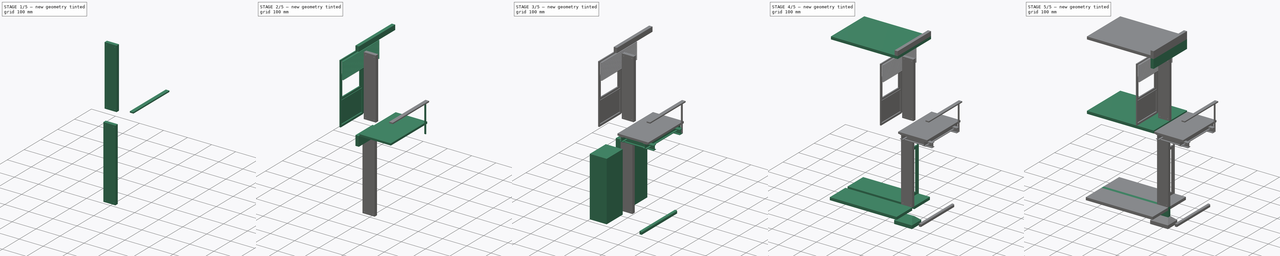
[diagram: build sequence overview — one tinted view per stage of 5, left to right]
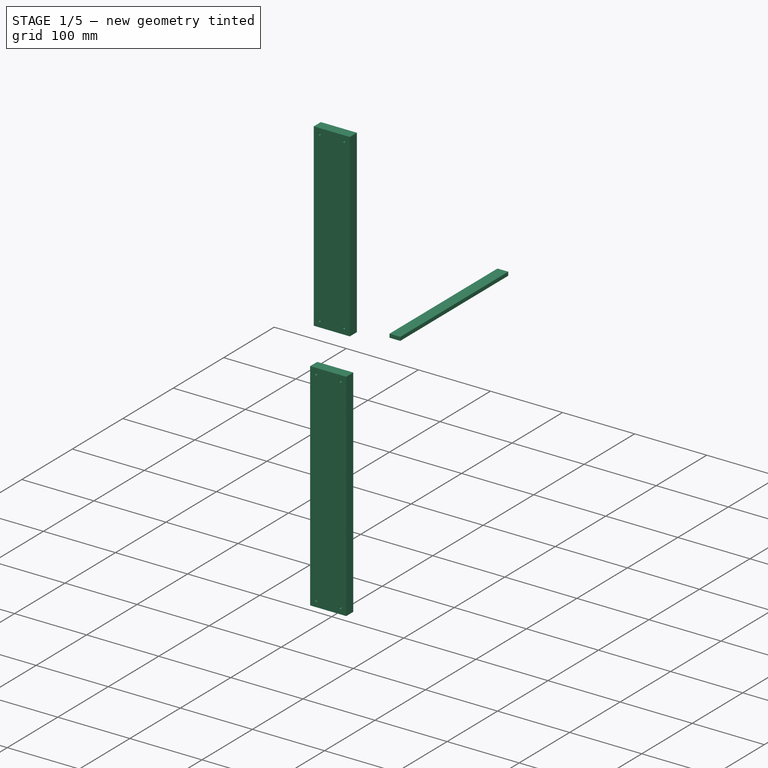
[diagram: stage 1 of 5 — iso view after this stage's code; geometry added in this stage tinted green]
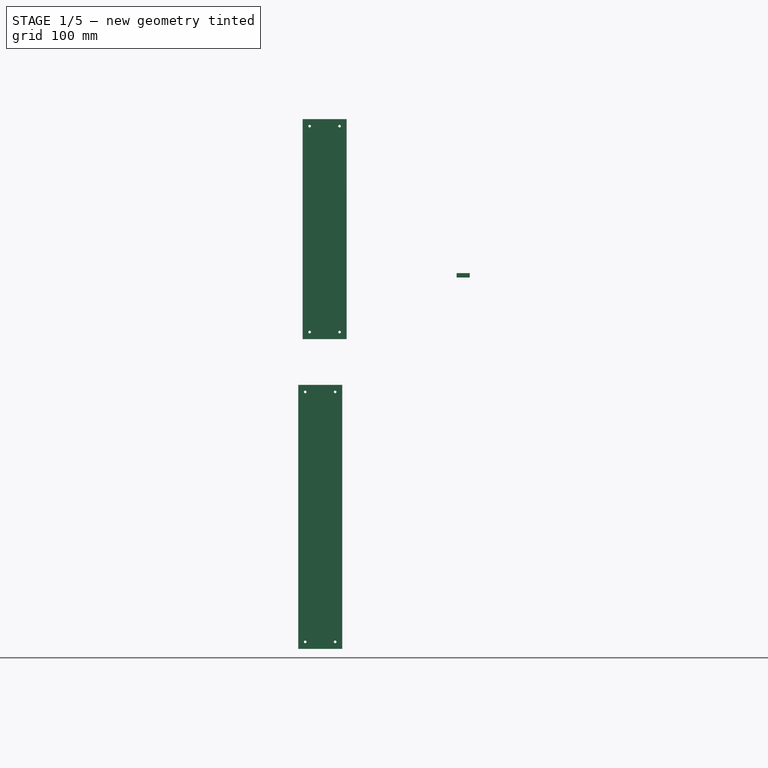
[diagram: stage 1 of 5 — front view after this stage's code; geometry added in this stage tinted green]
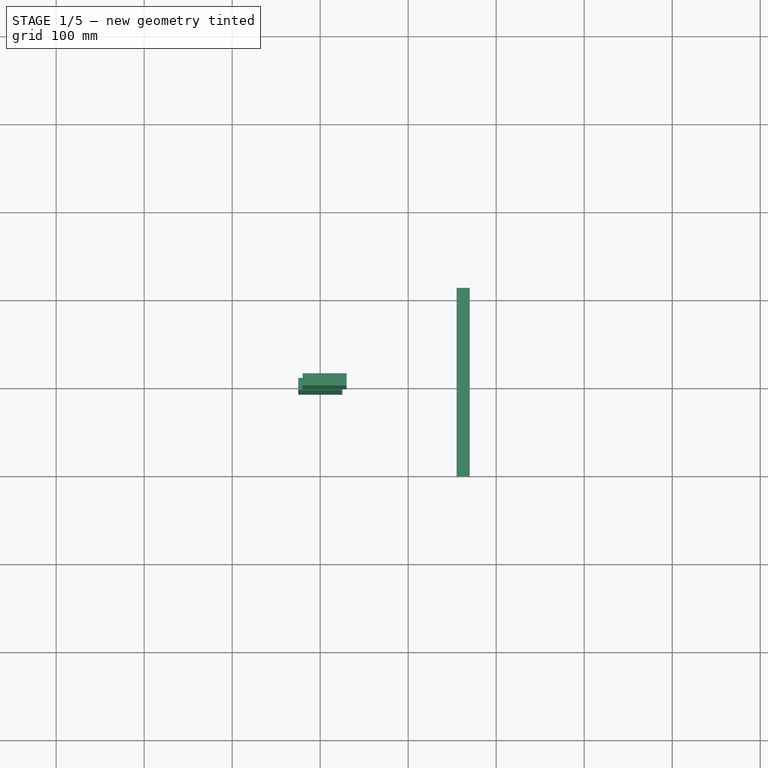
[diagram: stage 1 of 5 — top view after this stage's code; geometry added in this stage tinted green]
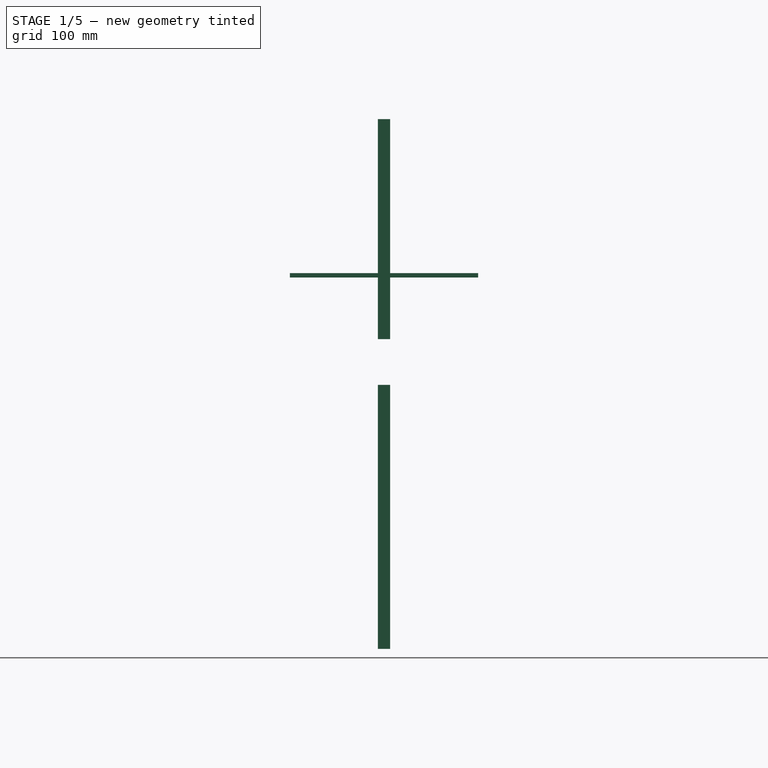
[diagram: stage 1 of 5 — right view after this stage's code; geometry added in this stage tinted green]
FCSTD DOCUMENT  (FreeCAD 0.19R17171 (Git))
Label: ArchDetail
License: CC-BY 3.0
LicenseURL: http://creativecommons.org/licenses/by/3.0/
objects: Part::FeaturePython×29, App::FeaturePython×18, Part::Part2DObjectPython×12, Sketcher::SketchObject×6, Part::Extrusion×6, App::DocumentObjectGroup×6, Drawing::FeatureViewPython×5, Part::Feature×3, Drawing::FeatureViewAnnotation×3, PartDesign::Pocket×2, Drawing::FeaturePage×1
note: 63 computed .brp shape members not serialized (recipe doc carries the construction recipe); baked Part::Feature solids carry a one-line shape summary decoded from their .brp

FEATURE [Part::FeaturePython] Structure  # Arch/BIM 0 (typed FeaturePython)
  FaceMaker = 0
  Height = 300
  HorizontalArea = 0
  IfcData = attributes={"PredefinedType": {"name": "PredefinedType", "type": "IfcBuildingElementProxyTypeEnum", "is_enum": true, "enum_values":... (+212 chars omitted)
  IfcType = 0
  Length = 50
  MoveBase = false
  MoveWithHost = false
  Nodes = (2) [(3.88578e-16,-1.42109e-16,0),(3.88578e-16,-1.42109e-16,300)]
  NodesOffset = 0
  Normal = (0,0,0)
  PerimeterLength = 0
  PredefinedType = 0
  VerticalArea = 0
  Width = 14
FEATURE [Sketcher::SketchObject] Sketch
  ExternalGeometry = -> [Structure]
  MapMode = 5
  Placement = pos=(0,-7,0) rot=(1,0,0;1.5708rad)
  Support = -> [Structure]
  sketch-geometry (4):
    g0: Circle CenterX=-17 CenterY=292 CenterZ=0 NormalX=0 NormalY=0 NormalZ=1 AngleXU=0 Radius=1.5
    g1: Circle CenterX=17 CenterY=292 CenterZ=0 NormalX=0 NormalY=0 NormalZ=1 AngleXU=0 Radius=1.5
    g2: Circle CenterX=-17 CenterY=8 CenterZ=0 NormalX=0 NormalY=0 NormalZ=1 AngleXU=0 Radius=1.5
    g3: Circle CenterX=17 CenterY=8 CenterZ=0 NormalX=0 NormalY=0 NormalZ=1 AngleXU=0 Radius=1.5
  constraints (12):
    c: Radius(g0) = 1.5
    c: DistanceY(g0,g-3) = 8
    c: DistanceX(g0,g-3) = -8
    c: Radius(g1) = 1.5
    c: DistanceY(g1,g-3) = 8
    c: DistanceX(g1,g-3) = 8
    c: Radius(g2) = 1.5
    c: DistanceX(g2,g-4) = -8
    c: DistanceY(g2,g-4) = -8
    c: DistanceY(g3,g-4) = -8
    c: Radius(g3) = 1.5
    c: DistanceX(g3,g-4) = 8
FEATURE [PartDesign::Pocket] Pocket
  Length = 14
  Length2 = 100
  Profile = -> Sketch
  Type = 0
FEATURE [Part::FeaturePython] Structure009  # Arch/BIM 0 (typed FeaturePython)
  FaceMaker = 0
  Height = 250
  HorizontalArea = 0
  IfcData = attributes={"PredefinedType": {"name": "PredefinedType", "type": "IfcBuildingElementProxyTypeEnum", "is_enum": true, "enum_values":... (+212 chars omitted)
  IfcType = 0
  Length = 50
  MoveBase = false
  MoveWithHost = false
  Nodes = (2) [(3.88578e-16,-1.42109e-16,0),(3.88578e-16,-1.42109e-16,250)]
  NodesOffset = 0
  Normal = (0,0,0)
  PerimeterLength = 0
  Placement = pos=(5,0,352) rot=(0,0,1;0rad)
  PredefinedType = 0
  VerticalArea = 0
  Width = 14
FEATURE [Sketcher::SketchObject] Sketch001
  ExternalGeometry = -> [Structure009]
  MapMode = 5
  Placement = pos=(5,-7,352) rot=(1,0,0;1.5708rad)
  Support = -> [Structure009]
  sketch-geometry (4):
    g0: Circle CenterX=-17 CenterY=242 CenterZ=0 NormalX=0 NormalY=0 NormalZ=1 AngleXU=0 Radius=1.5
    g1: Circle CenterX=17 CenterY=242 CenterZ=0 NormalX=0 NormalY=0 NormalZ=1 AngleXU=0 Radius=1.5
    g2: Circle CenterX=-17 CenterY=8 CenterZ=0 NormalX=0 NormalY=0 NormalZ=1 AngleXU=0 Radius=1.5
    g3: Circle CenterX=17 CenterY=8 CenterZ=0 NormalX=0 NormalY=0 NormalZ=1 AngleXU=0 Radius=1.5
  constraints (12):
    c: Radius(g0) = 1.5
    c: DistanceY(g0,g-3) = 8
    c: DistanceX(g0,g-3) = -8
    c: DistanceY(g1,g-3) = 8
    c: DistanceX(g1,g-3) = 8
    c: Radius(g1) = 1.5
    c: Radius(g2) = 1.5
    c: DistanceY(g-4,g2) = 8
    c: DistanceX(g2,g-4) = -8
    c: DistanceY(g-4,g3) = 8
    c: DistanceX(g3,g-4) = 8
    c: Radius(g3) = 1.5
FEATURE [PartDesign::Pocket] Pocket001
  Length = 14
  Length2 = 100
  Placement = pos=(5,0,352) rot=(0,0,1;0rad)
  Profile = -> Sketch001
  Type = 0
FEATURE [Part::Feature] Extrusion004  label="Balcony vertical support 02"
  Placement = pos=(0,-177,0) rot=(0,0,1;0rad)
  shape: bbox 6 x 3 x 112 mm, 6 faces (baked)
FEATURE [Part::Feature] Array001  label="Balcony louvres"
  Placement = pos=(197,3.00086e-05,-180) rot=(0,0,1;0rad)
  shape: bbox 8.05 x 214 x 70.37 mm, 84 faces, 14 solids (baked)
FEATURE [Part::Part2DObjectPython] Rectangle009  # Draft 2D object (typed FeaturePython)
  FilletRadius = 0
  Height = 5
  Length = -15
  Placement = pos=(170,-107,422) rot=(1,0,0;1.5708rad)
FEATURE [Part::Extrusion] Extrusion005  label="Balcony handrail"
  Base = -> Rectangle009
  Dir = (0,214,0)
  DirMode = 0
  FaceMakerClass = Part::FaceMakerExtrusion
  LengthFwd = 0
  LengthRev = 0
  Solid = false
  Symmetric = false
FEATURE [Part::Part2DObjectPython] Wire  # Draft 2D object (typed FeaturePython)
  Closed = false
  End = (31.3439,-7.90686e-05,671.711)
  FilletRadius = 0
  Placement = pos=(0,-107,0) rot=(0,0,1;0rad)
  Points = (6) [(-7.58162e-36,233258,1.85901e+20),(-8.50939e-36,12244800,2.28099e+20),(-8.50939e-36,7181030000,2.20694e+20),(0,0,0),(0,0,0),(0,0,0)]
  Start = (-269.759,-7.82754e-05,656.622)
FEATURE [Part::Extrusion] Extrude  label="Roof cover"
  Base = -> Wire
  Dir = (0,214,0)
  DirMode = 0
  FaceMakerClass = Part::FaceMakerExtrusion
  LengthFwd = 0
  LengthRev = 0
  Solid = false
  Symmetric = false
FEATURE [Part::FeaturePython] Structure023  label="Upper floor column"  # Arch/BIM 0 (typed FeaturePython)
  Base = -> Pocket001
  FaceMaker = 0
  Height = 0
  HorizontalArea = 0
  IfcData = attributes={"PredefinedType": {"name": "PredefinedType", "type": "IfcBuildingElementProxyTypeEnum", "is_enum": true, "enum_values":... (+212 chars omitted)
  IfcType = 0
  Length = 0
  MoveBase = false
  MoveWithHost = false
  NodesOffset = 0
  Normal = (0,0,0)
  PerimeterLength = 0
  PredefinedType = 0
  VerticalArea = 0
  Width = 0
FEATURE [Part::FeaturePython] Structure024  label="Ground floor column"  # Arch/BIM 0 (typed FeaturePython)
  Base = -> Pocket
  FaceMaker = 0
  Height = 0
  HorizontalArea = 0
  IfcData = attributes={"PredefinedType": {"name": "PredefinedType", "type": "IfcBuildingElementProxyTypeEnum", "is_enum": true, "enum_values":... (+212 chars omitted)
  IfcType = 0
  Length = 0
  MoveBase = false
  MoveWithHost = false
  NodesOffset = 0
  Normal = (0,0,0)
  PerimeterLength = 0
  PredefinedType = 0
  VerticalArea = 0
  Width = 0
FEATURE [App::DocumentObjectGroup] Group  label="Model"
  Group = -> [Extrude,Extrusion005,Array001,Extrusion004,Extrusion003,Array,Structure022,Rectangle006,Window001,Structure021,Structure020,Structure019,Structure018,Structure017,Rectangle,Structure016,Structure015,Clone,Window,Wall,Structure014,Structure013,Structure012,Structure011,Structure010,Structure008,Structure007,Structure006,Structure005,Structure001,Structure002,Structure003,Structure023,Structure024]
FEATURE [App::DocumentObjectGroup] Group001  label="Construction geometry"
  Group = -> [Extrusion002,Rectangle005,Rectangle001,Structure009,Structure]
FEATURE [App::FeaturePython] Section  label="Section A"  # WARN: FeaturePython — macro-defined, semantics opaque (R4)
  AlwaysOn = false
  Clip = false
  Objects = -> [Group]
  OnlySolids = true
  Placement = pos=(299.458,2.42689e-05,299.666) rot=(0,1,0;1.5708rad)
  UseMaterialColorForFill = false
FEATURE [Drawing::FeatureViewPython] View  label="View of Section A"  # drawing view (typed FeaturePython)
  AlwaysOn = false
  FontSize = 12
  LineWidth = 0.18
  RenderingMode = 0
  Rotation = 90
  Scale = 0.25
  ShowCut = false
  ShowFill = false
  Source = -> Section
  ViewResult = <blob: 50018 chars omitted>
  Visible = true
  X = 200
  Y = 190
FEATURE [App::FeaturePython] Section001  label="Section B"  # WARN: FeaturePython — macro-defined, semantics opaque (R4)
  AlwaysOn = false
  Clip = false
  Objects = -> [Group]
  OnlySolids = true
  Placement = pos=(-42.4009,-53.7271,299.769) rot=(-0.57735,-0.57735,0.57735;4.18879rad)
  UseMaterialColorForFill = false
FEATURE [Drawing::FeatureViewPython] View001  label="View of Section B"  # drawing view (typed FeaturePython)
  AlwaysOn = false
  FontSize = 12
  LineWidth = 0.18
  RenderingMode = 1
  Rotation = 180
  Scale = 0.25
  ShowCut = false
  ShowFill = true
  Source = -> Section001
  ViewResult = <blob: 47117 chars omitted>
  Visible = true
  X = 340
  Y = 190
FEATURE [Drawing::FeatureViewPython] View002  label="View of Section A (2)"  # drawing view (typed FeaturePython)
  AlwaysOn = false
  FontSize = 12
  LineWidth = 0.18
  RenderingMode = 1
  Rotation = 0
  Scale = 0.25
  ShowCut = false
  ShowFill = false
  Source = -> Section
  ViewResult = <blob: 28908 chars omitted>
  Visible = true
  X = 100
  Y = 190
FEATURE [Drawing::FeatureViewAnnotation] Annotation  label="Title 01"
  Font = Sans
  Rotation = 0
  Scale = 4
  Text = View of section A (wireframe)
  ViewResult = <g transform="translate(74,221) rotate(0)">\n<text id="Annotation"\n font-family="Sans"\n font-size="4"\n fill="#000000">\n<tspan x="0" dy="1em">View of section A (wireframe)</tspan>\n</text>\n</g>
  Visible = true
  X = 74
  Y = 221
FEATURE [Drawing::FeatureViewAnnotation] Annotation001  label="Title 02"
  Font = Sans
  Rotation = 0
  Scale = 4
  Text = View of section A (Solid)
  ViewResult = <g transform="translate(171,221) rotate(0)">\n<text id="Annotation001"\n font-family="Sans"\n font-size="4"\n fill="#000000">\n<tspan x="0" dy="1em">View of section A (Solid)</tspan>\n</text>\n</g>
  Visible = true
  X = 171
  Y = 221
FEATURE [Drawing::FeatureViewAnnotation] Annotation002  label="Title 03"
  Font = Sans
  Rotation = 0
  Scale = 4
  Text = View of section B (Wireframe)
  ViewResult = <g transform="translate(283,221) rotate(0)">\n<text id="Annotation002"\n font-family="Sans"\n font-size="4"\n fill="#000000">\n<tspan x="0" dy="1em">View of section B (Wireframe)</tspan>\n</text>\n</g>
  Visible = true
  X = 283
  Y = 221
FEATURE [App::FeaturePython] Section002  label="Section C"  # WARN: FeaturePython — macro-defined, semantics opaque (R4)
  Clip = false
  Objects = -> [Group]
  OnlySolids = true
  Placement = pos=(-43.5862,2.98023e-05,500) rot=(0,0,1;0rad)
  UseMaterialColorForFill = false
FEATURE [App::FeaturePython] Dimension  # Draft dimension (typed FeaturePython)
  Diameter = false
  Dimline = (-25,-164.867,235.542)
  Direction = (0,0,0)
  Distance = 250
  End = (-25,-107,250)
  Normal = (1,0,0)
  Start = (-25,-107,0)
FEATURE [App::FeaturePython] Dimension001  # Draft dimension (typed FeaturePython)
  Diameter = false
  Dimline = (-25,-164.867,250)
  Direction = (0,0,0)
  Distance = 50
  End = (-25,-107,300)
  Normal = (1,0,0)
  Start = (-25,-107,250)
FEATURE [App::FeaturePython] Dimension002  # Draft dimension (typed FeaturePython)
  Diameter = false
  Dimline = (-25,-164.867,300)
  Direction = (0,0,0)
  Distance = 52
  End = (-25,-107,352)
  Normal = (1,0,0)
  Start = (-25,-107,300)
FEATURE [App::FeaturePython] Dimension003  # Draft dimension (typed FeaturePython)
  Diameter = false
  Dimline = (-25,-164.867,352)
  Direction = (0,0,0)
  Distance = 75
  End = (-25,-107,427)
  Normal = (1,0,0)
  Start = (-25,-107,352)
FEATURE [App::FeaturePython] Dimension004  # Draft dimension (typed FeaturePython)
  Diameter = false
  Dimline = (-25,-164.867,427)
  Direction = (0,0,0)
  Distance = 175
  End = (-25,-107,602)
  Normal = (1,0,0)
  Start = (-25,-107,427)
FEATURE [App::FeaturePython] Dimension005  # Draft dimension (typed FeaturePython)
  Diameter = false
  Dimline = (-25,-164.867,602)
  Direction = (0,0,0)
  Distance = 40
  End = (-25,-107,642)
  Normal = (1,0,0)
  Start = (-25,-107,602)
FEATURE [App::FeaturePython] Dimension006  # Draft dimension (typed FeaturePython)
  Diameter = false
  Dimline = (-25,-164.867,642)
  Direction = (0,0,0)
  Distance = 29.7106
  End = (-25,-107,671.711)
  Normal = (1,0,0)
  Start = (-25,-107,642)
FEATURE [App::FeaturePython] Dimension007  # Draft dimension (typed FeaturePython)
  Diameter = false
  Dimline = (-25,-200,-112.549)
  Direction = (0,0,0)
  Distance = 671.711
  End = (-25,-164.867,671.711)
  Normal = (1,0,0)
  Start = (-25,-164.867,0)
FEATURE [App::DocumentObjectGroup] Group002  label="Dimensions front view"
  Group = -> [Dimension,Dimension001,Dimension002,Dimension003,Dimension004,Dimension005,Dimension006,Dimension007]
FEATURE [Drawing::FeatureViewPython] ViewGroup002  label="View of front dimensions"  # drawing view (typed FeaturePython)
  AlwaysOn = false
  Direction = (1,0,0)
  FillStyle = 0
  FontSize = 7
  LineSpacing = 0
  LineStyle = 0
  LineWidth = 0.15
  Rotation = -90
  Scale = 0.25
  Source = -> Group002
  ViewResult = <blob: 7216 chars omitted>
  Visible = true
  X = 104
  Y = 190
FEATURE [App::DocumentObjectGroup] Group003  label="Section Planes"
  Group = -> [Section,Section001,Section002]
FEATURE [App::FeaturePython] Dimension008  # Draft dimension (typed FeaturePython)
  Diameter = false
  Dimline = (-100,-7,150)
  Direction = (0,0,0)
  Distance = 300
  End = (25,-7,300)
  Normal = (0,-1,0)
  Start = (25,-7,0)
FEATURE [App::FeaturePython] Dimension009  # Draft dimension (typed FeaturePython)
  Diameter = false
  Dimline = (-100,-7,300)
  Direction = (0,0,0)
  Distance = 52
  End = (16,-7,352)
  Normal = (0,-1,0)
  Start = (16,-7,300)
FEATURE [App::FeaturePython] Dimension010  # Draft dimension (typed FeaturePython)
  Diameter = false
  Dimline = (-100,-7,300)
  Direction = (0,0,0)
  Distance = 250
  End = (30,-7,602)
  Normal = (0,-1,0)
  Start = (30,-7,352)
FEATURE [App::FeaturePython] Dimension011  # Draft dimension (typed FeaturePython)
  Diameter = false
  Dimline = (-100,-7,602)
  Direction = (0,0,0)
  Distance = 52
  End = (16,-7,654)
  Normal = (0,-1,0)
  Start = (16,-7,602)
FEATURE [App::FeaturePython] Dimension012  # Draft dimension (typed FeaturePython)
  Diameter = false
  Dimline = (100,-7,250)
  Direction = (0,0,0)
  Distance = 309.946
  End = (75,-7,309.946)
  Normal = (0,-1,0)
  Start = (75,-7,0)
FEATURE [App::FeaturePython] Dimension013  # Draft dimension (typed FeaturePython)
  Diameter = false
  Dimline = (100,-7,309.946)
  Direction = (0,0,0)
  Distance = 38.0544
  End = (164,-7,348)
  Normal = (0,-1,0)
  Start = (164,-7,309.946)
FEATURE [App::FeaturePython] Dimension014  # Draft dimension (typed FeaturePython)
  Diameter = false
  Dimline = (100,-7,348)
  Direction = (0,0,0)
  Distance = 79
  End = (162,-7,427)
  Normal = (0,-1,0)
  Start = (162,-7,348)
FEATURE [App::DocumentObjectGroup] Group004  label="Dimensions side view"
  Group = -> [Dimension008,Dimension009,Dimension010,Dimension011,Dimension012,Dimension013,Dimension014]
FEATURE [Drawing::FeatureViewPython] ViewGroup004  label="View of side dimensions"  # drawing view (typed FeaturePython)
  AlwaysOn = false
  Direction = (0,-1,0)
  FillStyle = 0
  FontSize = 7
  LineSpacing = 0
  LineStyle = 0
  LineWidth = 0.15
  Rotation = 90
  Scale = 0.25
  Source = -> Group004
  ViewResult = <blob: 5634 chars omitted>
  Visible = true
  X = 335
  Y = 190
FEATURE [Drawing::FeaturePage] Page  label="Page A3"
  EditableTexts = Yorik van Havre | 01 NOV 2016 | 01 NOV 2016 | 1:40 | 0001 | 01 / 01 | ARCHITECTURAL DETAIL | TO SHOWCASE ARCH SECTION PLANES
  Group = -> [View,View001,View002,Annotation,Annotation001,Annotation002,ViewGroup002,ViewGroup004]
  Template = E:/New Download/FreeCAD/_FreeCAD_Conda/data/Mod/Drawing/Templates/A3_Landscape.svg
FEATURE [App::DocumentObjectGroup] Group005  label="Dimensions"
  Group = -> [Group004,Group002]
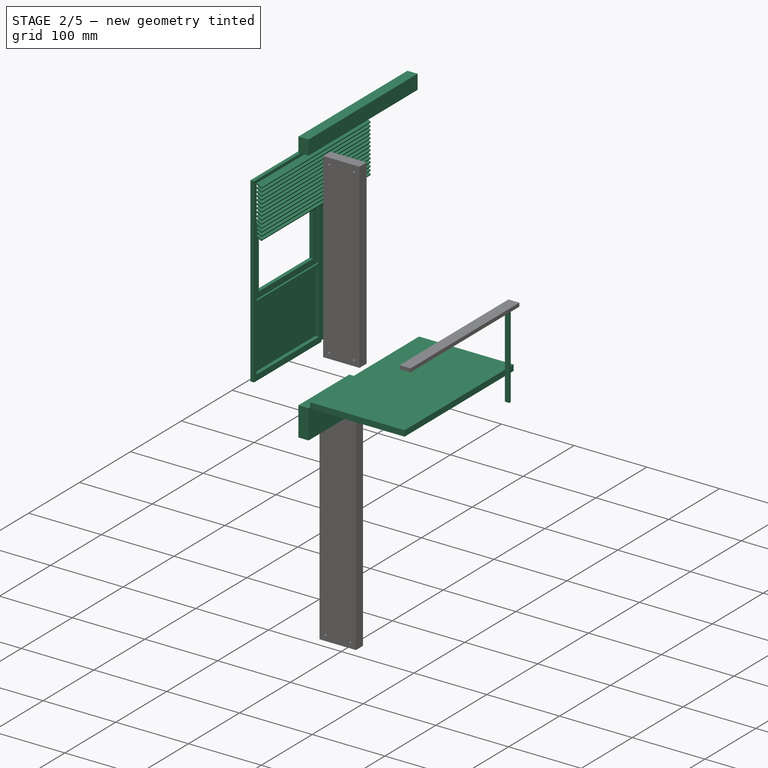
[diagram: stage 2 of 5 — iso view after this stage's code; geometry added in this stage tinted green]
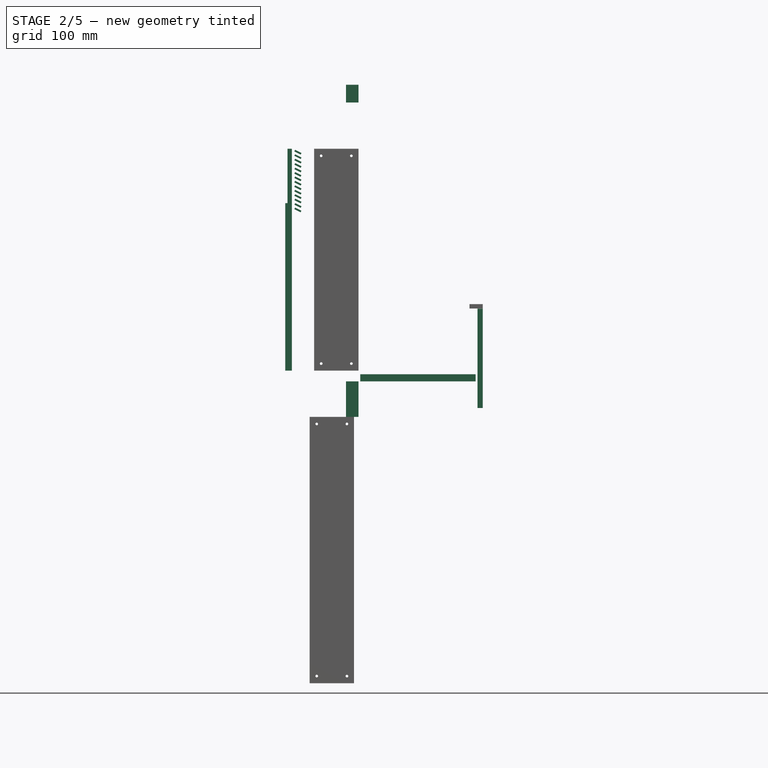
[diagram: stage 2 of 5 — front view after this stage's code; geometry added in this stage tinted green]
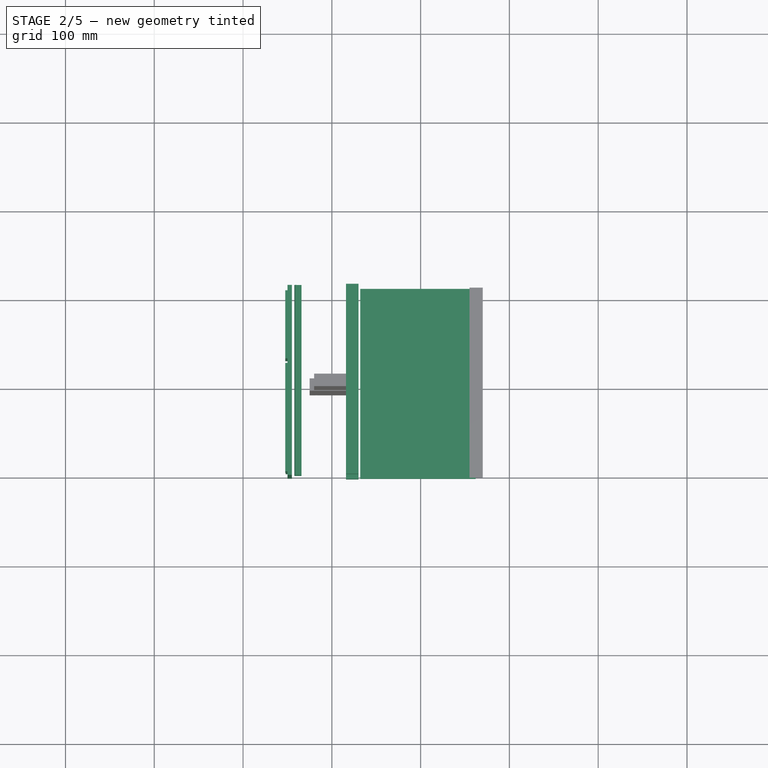
[diagram: stage 2 of 5 — top view after this stage's code; geometry added in this stage tinted green]
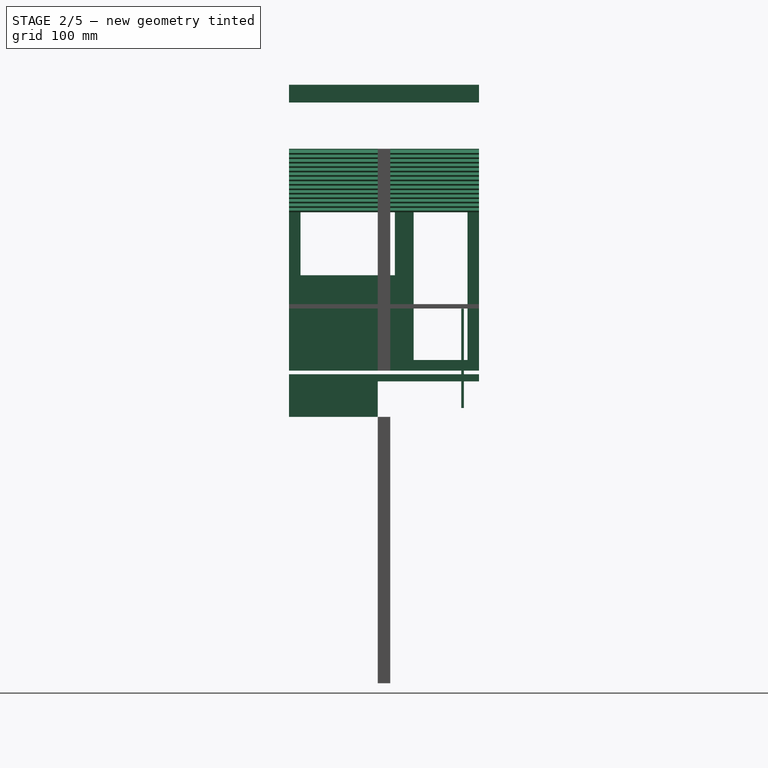
[diagram: stage 2 of 5 — right view after this stage's code; geometry added in this stage tinted green]
FEATURE [Part::FeaturePython] Structure002  label="Upper floor front beam 02"  # Arch/BIM 0 (typed FeaturePython)
  FaceMaker = 0
  Height = 40
  HorizontalArea = 0
  IfcData = attributes={"PredefinedType": {"name": "PredefinedType", "type": "IfcBuildingElementProxyTypeEnum", "is_enum": true, "enum_values":... (+212 chars omitted)
  IfcType = 0
  Length = 100
  MoveBase = false
  MoveWithHost = false
  Nodes = (2) [(0,1.77636e-16,9.4369e-16),(0,1.77636e-16,100)]
  NodesOffset = 0
  Normal = (0,0,0)
  PerimeterLength = 0
  Placement = pos=(23,-7,320) rot=(0,0,-1;1.5708rad)
  PredefinedType = 0
  VerticalArea = 0
  Width = 14
FEATURE [Part::Part2DObjectPython] Rectangle004  # Draft 2D object (typed FeaturePython)
  FilletRadius = 0
  Height = -214
  Length = 130
  Placement = pos=(32,107,340) rot=(0,0,1;0rad)
FEATURE [Part::FeaturePython] Structure021  label="Balcony slab"  # Arch/BIM 0 (typed FeaturePython)
  Base = -> Rectangle004
  FaceMaker = 0
  Height = 0
  HorizontalArea = 0
  IfcData = attributes={"PredefinedType": {"name": "PredefinedType", "type": "IfcBuildingElementProxyTypeEnum", "is_enum": true, "enum_values":... (+212 chars omitted)
  IfcType = 0
  Length = 0
  MoveBase = false
  MoveWithHost = false
  Nodes = (4) [(32,107,340),(162,107,340),(162,-107,340),(32,-107,340)]
  NodesOffset = 0
  Normal = (0,0,8)
  PerimeterLength = 0
  PredefinedType = 0
  VerticalArea = 0
  Width = 0
FEATURE [Part::Part2DObjectPython] Rectangle005  # Draft 2D object (typed FeaturePython)
  FilletRadius = 0
  Height = 250
  Length = 214
  Placement = pos=(-50,-107,352) rot=(0.57735,0.57735,0.57735;2.0944rad)
FEATURE [Sketcher::SketchObject] Sketch005
  ExternalGeometry = -> [Rectangle005]
  MapMode = 5
  Placement = pos=(-50,-107,352) rot=(0.57735,0.57735,-0.57735;4.18879rad)
  Support = -> [Rectangle005]
  sketch-geometry (28):
    g0: LineSegment StartX=0 StartY=-250 StartZ=0 EndX=214 EndY=-250 EndZ=0
    g1: LineSegment StartX=214 StartY=-250 StartZ=0 EndX=214 EndY=0 EndZ=0
    g2: LineSegment StartX=214 StartY=0 StartZ=0 EndX=0 EndY=0 EndZ=0
    g3: LineSegment StartX=0 StartY=0 StartZ=0 EndX=0 EndY=-250 EndZ=0
    g4: LineSegment StartX=209 StartY=-245 StartZ=0 EndX=5 EndY=-245 EndZ=0
    g5: LineSegment StartX=5 StartY=-245 StartZ=0 EndX=5 EndY=-193.698 EndZ=0
    g6: LineSegment StartX=5 StartY=-193.698 StartZ=0 EndX=209 EndY=-193.698 EndZ=0
    g7: LineSegment StartX=209 StartY=-193.698 StartZ=0 EndX=209 EndY=-245 EndZ=0
    g8: LineSegment StartX=209 StartY=-188.698 StartZ=0 EndX=132.303 EndY=-188.698 EndZ=0
    g9: LineSegment StartX=132.303 StartY=-188.698 StartZ=0 EndX=132.303 EndY=0 EndZ=0
    g10: LineSegment StartX=132.303 StartY=0 StartZ=0 EndX=209 EndY=0 EndZ=0
    g11: LineSegment StartX=209 StartY=0 StartZ=0 EndX=209 EndY=-188.698 EndZ=0
    g12: LineSegment StartX=127.303 StartY=-188.698 StartZ=0 EndX=5 EndY=-188.698 EndZ=0
    g13: LineSegment StartX=5 StartY=-188.698 StartZ=0 EndX=5 EndY=-99.4786 EndZ=0
    g14: LineSegment StartX=5 StartY=-99.4786 StartZ=0 EndX=127.303 EndY=-99.4786 EndZ=0
    g15: LineSegment StartX=127.303 StartY=-99.4786 StartZ=0 EndX=127.303 EndY=-188.698 EndZ=0
    g16: LineSegment StartX=127.303 StartY=-94.4786 StartZ=0 EndX=5 EndY=-94.4786 EndZ=0
    g17: LineSegment StartX=5 StartY=-94.4786 StartZ=0 EndX=5 EndY=-8 EndZ=0
    g18: LineSegment StartX=5 StartY=-8 StartZ=0 EndX=127.303 EndY=-8 EndZ=0
    g19: LineSegment StartX=127.303 StartY=-8 StartZ=0 EndX=127.303 EndY=-94.4786 EndZ=0
    g20: LineSegment StartX=201 StartY=-180.698 StartZ=0 EndX=140.303 EndY=-180.698 EndZ=0
    g21: LineSegment StartX=140.303 StartY=-180.698 StartZ=0 EndX=140.303 EndY=-12 EndZ=0
    g22: LineSegment StartX=140.303 StartY=-12 StartZ=0 EndX=201 EndY=-12 EndZ=0
    g23: LineSegment StartX=201 StartY=-12 StartZ=0 EndX=201 EndY=-180.698 EndZ=0
    g24: LineSegment StartX=119.303 StartY=-180.698 StartZ=0 EndX=13 EndY=-180.698 EndZ=0
    g25: LineSegment StartX=13 StartY=-180.698 StartZ=0 EndX=13 EndY=-107.479 EndZ=0
    g26: LineSegment StartX=13 StartY=-107.479 StartZ=0 EndX=119.303 EndY=-107.479 EndZ=0
    g27: LineSegment StartX=119.303 StartY=-107.479 StartZ=0 EndX=119.303 EndY=-180.698 EndZ=0
  constraints (81):
    c: Coincident(g0,g1)
    c: Coincident(g1,g2)
    c: Coincident(g2,g3)
    c: Coincident(g3,g0)
    c: Horizontal(g0)
    c: Horizontal(g2)
    c: Vertical(g1)
    c: Vertical(g3)
    c: DistanceX(g0,g-4) = 0
    c: DistanceX(g0,g-3) = 0
    c: DistanceY(g0,g-4) = 0
    c: DistanceY(g1,g-4) = 0
    c: Coincident(g4,g5)
    c: Coincident(g5,g6)
    c: Coincident(g6,g7)
    c: Coincident(g7,g4)
    c: Horizontal(g4)
    c: Horizontal(g6)
    c: Vertical(g5)
    c: Vertical(g7)
    c: Coincident(g8,g9)
    c: Coincident(g9,g10)
    c: Coincident(g10,g11)
    c: Coincident(g11,g8)
    c: Horizontal(g8)
    c: Horizontal(g10)
    c: Vertical(g9)
    c: Vertical(g11)
    c: PointOnObject(g9,g2)
    c: Coincident(g12,g13)
    c: Coincident(g13,g14)
    c: Coincident(g14,g15)
    c: Coincident(g15,g12)
    c: Horizontal(g12)
    c: Horizontal(g14)
    c: Vertical(g13)
    c: Vertical(g15)
    c: DistanceX(g5,g12) = 0
    c: DistanceX(g4,g0) = -5
    c: DistanceY(g4,g0) = -5
    c: DistanceX(g4,g0) = 5
    c: DistanceX(g8,g6) = 0
    c: DistanceX(g12,g8) = 5
    c: DistanceY(g12,g8) = 0
    c: Coincident(g16,g17)
    c: Coincident(g17,g18)
    c: Coincident(g18,g19)
    c: Coincident(g19,g16)
    c: Horizontal(g16)
    c: Horizontal(g18)
    c: Vertical(g17)
    c: Vertical(g19)
    c: Coincident(g20,g21)
    c: Coincident(g21,g22)
    c: Coincident(g22,g23)
    c: Coincident(g23,g20)
    c: Horizontal(g20)
    c: Horizontal(g22)
    c: Vertical(g21)
    c: Vertical(g23)
    c: Coincident(g24,g25)
    c: Coincident(g25,g26)
    c: Coincident(g26,g27)
    c: Coincident(g27,g24)
    c: Horizontal(g24)
    c: Horizontal(g26)
    c: Vertical(g25)
    c: Vertical(g27)
    c: DistanceY(g20,g8) = -8
    c: DistanceX(g20,g8) = 8
    c: DistanceX(g8,g20) = 8
    c: DistanceX(g24,g12) = 8
    c: DistanceY(g24,g12) = -8
    c: DistanceX(g24,g12) = -8
    c: DistanceX(g14,g16) = 0
    c: DistanceX(g13,g16) = 0
    c: DistanceY(g17,g2) = 8
    c: DistanceY(g22,g10) = 12
    c: DistanceY(g14,g26) = -8
    c: DistanceY(g13,g16) = 5
    c: DistanceY(g8,g6) = -5
FEATURE [Part::FeaturePython] Window001  label="Upper floor window"  # Arch/BIM 0 (typed FeaturePython)
  Area = 0
  Base = -> Sketch005
  Frame = 0
  Height = 0
  HoleDepth = 0
  HoleWire = 0
  HorizontalArea = 0
  IfcType = 0
  LouvreSpacing = 0
  LouvreWidth = 0
  MoveBase = false
  MoveWithHost = false
  Normal = (0,0,0)
  Opening = 0
  PerimeterLength = 0
  Preset = 0
  SymbolElevation = false
  SymbolPlan = false
  VerticalArea = 0
  Width = 0
  WindowParts = Outer Frame | Panel | Wire0,Wire1,Wire2,Wire3,Wire4,Wire5,Wire6 | 5 | 0 | Door Frame | Wire2,Wire5 | 5 | -2.5 | Window Frame | Wire3,Wire6 | 5 | -2.5 | Window Panel | Wire4 | 2 | 0
FEATURE [Part::Part2DObjectPython] Rectangle006  label="Upper floor ceiling"  # Draft 2D object (typed FeaturePython)
  FilletRadius = 0
  Height = 214
  Length = 61
  Placement = pos=(-45,-107,602) rot=(0,0,1;0rad)
FEATURE [Part::FeaturePython] Structure022  label="Roof wall"  # Arch/BIM 0 (typed FeaturePython)
  FaceMaker = 0
  Height = 20
  HorizontalArea = 0
  IfcData = attributes={"PredefinedType": {"name": "PredefinedType", "type": "IfcBuildingElementProxyTypeEnum", "is_enum": true, "enum_values":... (+212 chars omitted)
  IfcType = 0
  Length = 214
  MoveBase = false
  MoveWithHost = false
  Nodes = (2) [(0,1.77636e-16,4.71845e-16),(0,1.77636e-16,214)]
  NodesOffset = 0
  Normal = (0,0,0)
  PerimeterLength = 0
  Placement = pos=(23,107,664) rot=(0,0,-1;1.5708rad)
  PredefinedType = 0
  VerticalArea = 0
  Width = 14
FEATURE [Part::Part2DObjectPython] Rectangle007  # Draft 2D object (typed FeaturePython)
  FilletRadius = 0
  Height = -2
  Length = 8
  Placement = pos=(-41.3416,-107,600.789) rot=(0.948536,0.223919,-0.223919;1.62361rad)
FEATURE [Part::Extrusion] Extrusion002
  Base = -> Rectangle007
  Dir = (0,214,0)
  DirMode = 0
  FaceMakerClass = Part::FaceMakerExtrusion
  LengthFwd = 0
  LengthRev = 0
  Solid = false
  Symmetric = false
FEATURE [Part::FeaturePython] Array  label="Upper floor louvres"  # Draft array (typed FeaturePython)
  Angle = 360
  ArrayType = 0
  Axis = (0,0,1)
  Base = -> Extrusion002
  Center = (0,0,0)
  IntervalX = (0,0,-5)
  IntervalY = (0,10,0)
  NumberPolar = 1
  NumberX = 14
  NumberY = 1
FEATURE [Part::Part2DObjectPython] Rectangle008  # Draft 2D object (typed FeaturePython)
  FilletRadius = 0
  Height = 3
  Length = -6
  Placement = pos=(170,87,309.946) rot=(0,0,1;0rad)
FEATURE [Part::Extrusion] Extrusion003  label="Balcony vertical support 01"
  Base = -> Rectangle008
  Dir = (0,0,112)
  DirMode = 0
  FaceMakerClass = Part::FaceMakerExtrusion
  LengthFwd = 0
  LengthRev = 0
  Solid = false
  Symmetric = false
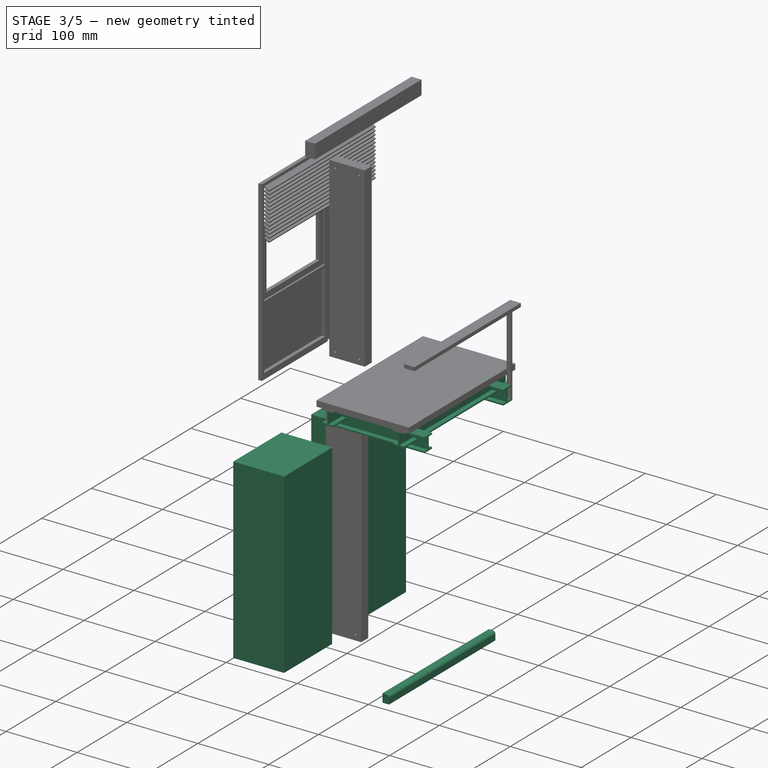
[diagram: stage 3 of 5 — iso view after this stage's code; geometry added in this stage tinted green]
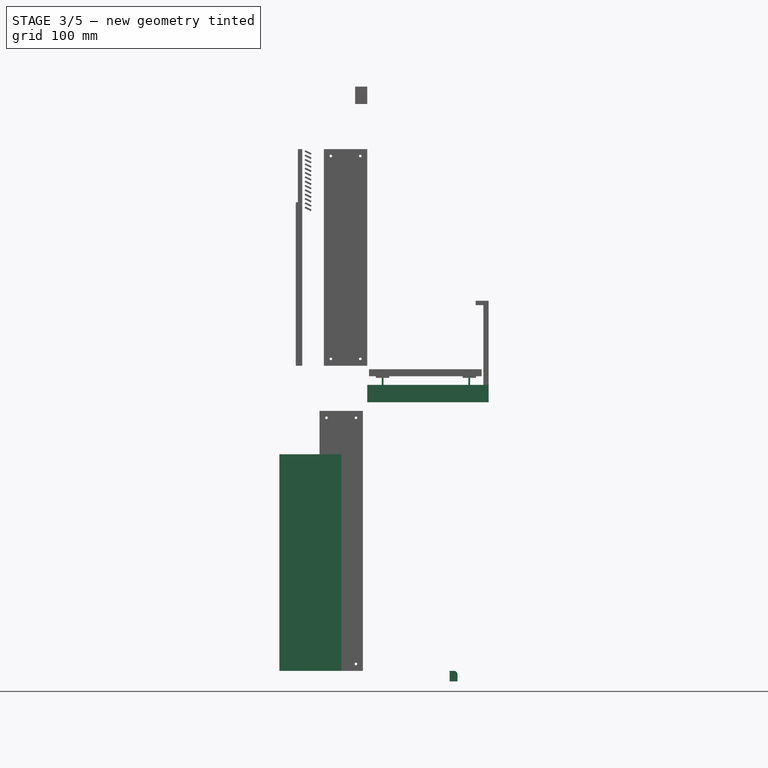
[diagram: stage 3 of 5 — front view after this stage's code; geometry added in this stage tinted green]
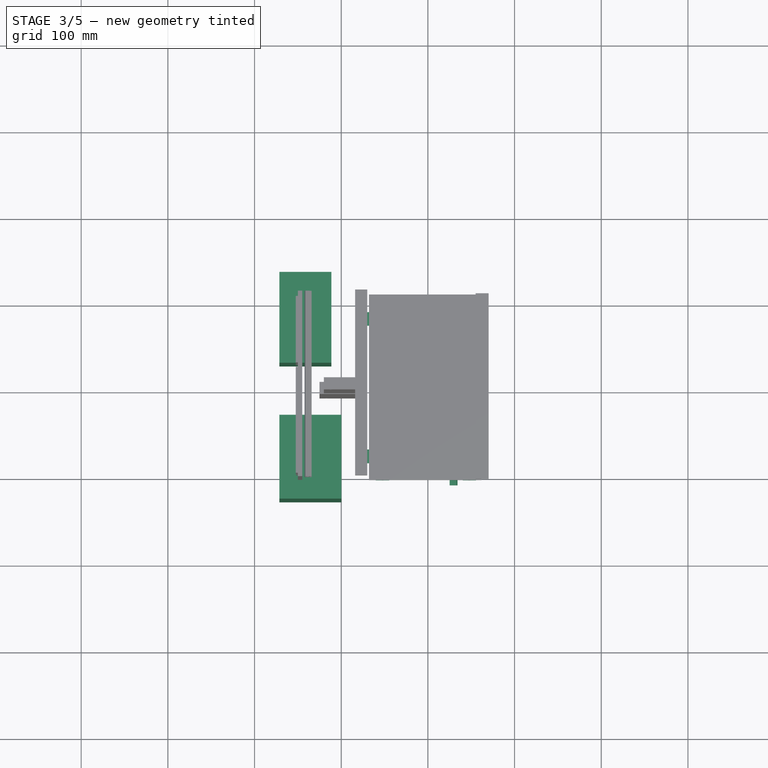
[diagram: stage 3 of 5 — top view after this stage's code; geometry added in this stage tinted green]
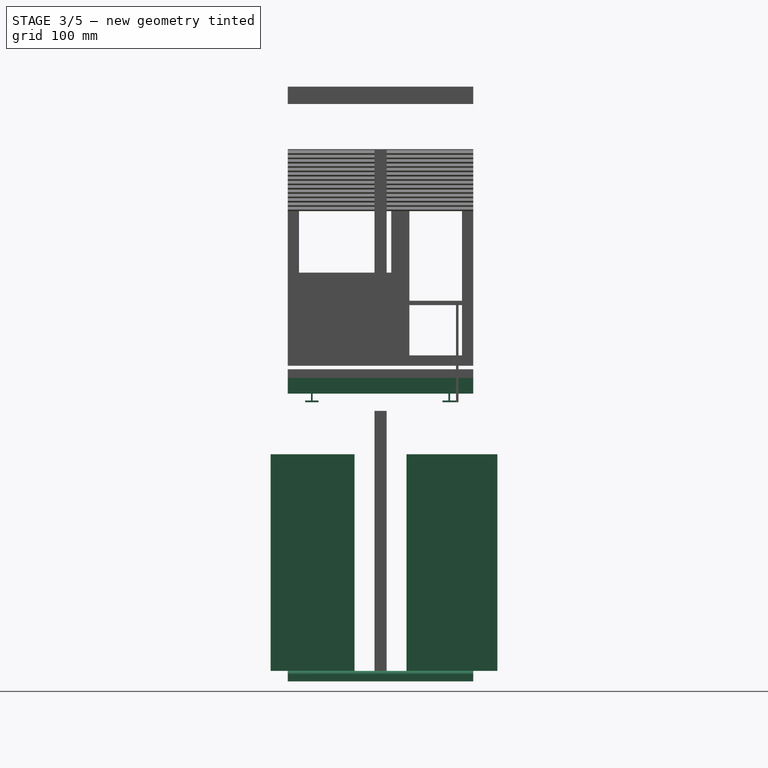
[diagram: stage 3 of 5 — right view after this stage's code; geometry added in this stage tinted green]
FEATURE [Part::Part2DObjectPython] Line  # Draft 2D object (typed FeaturePython)
  Closed = false
  End = (-275,107,0)
  FilletRadius = 0
  Points = (2) [(-96757100000000,-2.29684e+17,7.74519e-121),(0,0,0)]
  Start = (-275,-107,0)
FEATURE [Part::Part2DObjectPython] Rectangle002  # Draft 2D object (typed FeaturePython)
  FilletRadius = 0
  Height = 96.8245
  Length = -71.4803
  Placement = pos=(-239.26,-126.824,0) rot=(0,0,1;0rad)
FEATURE [Part::Part2DObjectPython] Rectangle003  # Draft 2D object (typed FeaturePython)
  FilletRadius = 0
  Height = 104.826
  Length = 60
  Placement = pos=(-310.74,30,0) rot=(0,0,1;0rad)
FEATURE [Part::Extrusion] Extrusion
  Base = -> Rectangle003
  Dir = (0,0,250)
  DirMode = 0
  FaceMakerClass = Part::FaceMakerExtrusion
  LengthFwd = 0
  LengthRev = 0
  Placement = pos=(239.438,0,0) rot=(0,0,1;0rad)
  Solid = false
  Symmetric = false
FEATURE [Part::Extrusion] Extrusion001
  Base = -> Rectangle002
  Dir = (0,0,250)
  DirMode = 0
  FaceMakerClass = Part::FaceMakerExtrusion
  LengthFwd = 0
  LengthRev = 0
  Placement = pos=(239.438,0,0) rot=(0,0,1;0rad)
  Solid = false
  Symmetric = false
FEATURE [Part::FeaturePython] Structure015  label="Curb slab"  # Arch/BIM 0 (typed FeaturePython)
  FaceMaker = 0
  Height = 12
  HorizontalArea = 0
  IfcData = attributes={"PredefinedType": {"name": "PredefinedType", "type": "IfcBuildingElementProxyTypeEnum", "is_enum": true, "enum_values":... (+212 chars omitted)
  IfcType = 0
  Length = 214
  MoveBase = false
  MoveWithHost = false
  Nodes = (2) [(0,-1.18424e-15,5.55112e-17),(0,-1.18424e-15,214)]
  NodesOffset = 0
  Normal = (0,0,0)
  PerimeterLength = 0
  Placement = pos=(75,107,-6) rot=(0,0,-1;1.5708rad)
  PredefinedType = 0
  VerticalArea = 0
  Width = 100
FEATURE [Sketcher::SketchObject] Sketch003
  ExternalGeometry = -> [Structure015]
  MapMode = 5
  Placement = pos=(75,107,0) rot=(0,0,-1;1.5708rad)
  Support = -> [Structure015]
  constraints (13):
    c: Vertical(g0)
    c: DistanceY(g0,g-3) = 0
    c: DistanceY(g0,g-3) = 0
    c: Coincident(g1,g0)
    c: Horizontal(g1)
    c: Coincident(g2,g1)
    c: Vertical(g2)
    c: Coincident(g3,g2)
    c: Coincident(g4,g0)
    c: Horizontal(g4)
    c: Coincident(g3,g4)
    c: Tangent(g4,g3)
    c: Tangent(g3,g2)
FEATURE [Part::FeaturePython] Structure016  label="Curb border"  # Arch/BIM 0 (typed FeaturePython)
  Base = -> Sketch003
  FaceMaker = 0
  Height = 0
  HorizontalArea = 0
  IfcData = attributes={"PredefinedType": {"name": "PredefinedType", "type": "IfcBuildingElementProxyTypeEnum", "is_enum": true, "enum_values":... (+212 chars omitted)
  IfcType = 0
  Length = 0
  MoveBase = false
  MoveWithHost = false
  Nodes = (4) [(125,56.5139,1.1e-14),(125,11.4372,2.1e-14),(82.9439,11.4372,2.1e-14),(125,53.4932,1.2e-14)]
  NodesOffset = 0
  Normal = (0,214,0)
  PerimeterLength = 0
  Placement = pos=(-0.486092,0,10) rot=(0,0,1;0rad)
  PredefinedType = 0
  VerticalArea = 0
  Width = 0
FEATURE [Part::Part2DObjectPython] Rectangle  label="Ground floor ceiling"  # Draft 2D object (typed FeaturePython)
  FilletRadius = 0
  Height = 214
  Length = 41
  Placement = pos=(-25,-107,300) rot=(0,0,1;0rad)
FEATURE [Sketcher::SketchObject] Sketch004
  MapMode = 5
  Placement = pos=(30,-7,320) rot=(0.57735,0.57735,0.57735;2.0944rad)
  Support = -> [Structure002]
  sketch-geometry (12):
    g0: LineSegment StartX=-45.9011 StartY=35.7533 StartZ=0 EndX=-30.4443 EndY=35.7533 EndZ=0
    g1: LineSegment StartX=-30.4443 StartY=35.7533 StartZ=0 EndX=-30.4443 EndY=33.7533 EndZ=0
    g2: LineSegment StartX=-30.4443 StartY=33.7533 StartZ=0 EndX=-37.1727 EndY=33.7533 EndZ=0
    g3: LineSegment StartX=-37.1727 StartY=33.7533 StartZ=0 EndX=-37.1727 EndY=17.6989 EndZ=0
    g4: LineSegment StartX=-37.1727 StartY=17.6989 StartZ=0 EndX=-30.4443 EndY=17.6989 EndZ=0
    g5: LineSegment StartX=-30.4443 StartY=17.6989 StartZ=0 EndX=-30.4443 EndY=15.6989 EndZ=0
    g6: LineSegment StartX=-30.4443 StartY=15.6989 StartZ=0 EndX=-45.9011 EndY=15.6989 EndZ=0
    g7: LineSegment StartX=-45.9011 StartY=15.6989 StartZ=0 EndX=-45.9011 EndY=17.6989 EndZ=0
    g8: LineSegment StartX=-45.9011 StartY=17.6989 StartZ=0 EndX=-39.1727 EndY=17.6989 EndZ=0
    g9: LineSegment StartX=-39.1727 StartY=17.6989 StartZ=0 EndX=-39.1727 EndY=33.7533 EndZ=0
    g10: LineSegment StartX=-39.1727 StartY=33.7533 StartZ=0 EndX=-45.9011 EndY=33.7533 EndZ=0
    g11: LineSegment StartX=-45.9011 StartY=33.7533 StartZ=0 EndX=-45.9011 EndY=35.7533 EndZ=0
  constraints (32):
    c: Horizontal(g0)
    c: Coincident(g0,g1)
    c: Vertical(g1)
    c: Coincident(g1,g2)
    c: Horizontal(g2)
    c: Coincident(g2,g3)
    c: Vertical(g3)
    c: Coincident(g3,g4)
    c: Horizontal(g4)
    c: Coincident(g4,g5)
    c: Vertical(g5)
    c: Coincident(g5,g6)
    c: Horizontal(g6)
    c: Coincident(g6,g7)
    c: Vertical(g7)
    c: Coincident(g7,g8)
    c: Horizontal(g8)
    c: Coincident(g8,g9)
    c: Vertical(g9)
    c: Coincident(g9,g10)
    c: Horizontal(g10)
    c: Coincident(g10,g11)
    c: Coincident(g11,g0)
    c: Vertical(g11)
    c: DistanceX(g10,g7) = 0
    c: DistanceX(g1,g4) = 0
    c: Equal(g10,g2)
    c: Equal(g7,g5)
    c: Equal(g1,g11)
    c: DistanceX(g9,g2) = 2
    c: DistanceY(g0,g10) = -2
    c: DistanceY(g7,g6) = -2
FEATURE [Part::FeaturePython] Structure017  label="Balcony horizontal support 02"  # Arch/BIM 0 (typed FeaturePython)
  Base = -> Sketch004
  FaceMaker = 0
  Height = 0
  HorizontalArea = 0
  IfcData = attributes={"PredefinedType": {"name": "PredefinedType", "type": "IfcBuildingElementProxyTypeEnum", "is_enum": true, "enum_values":... (+212 chars omitted)
  IfcType = 0
  Length = 0
  MoveBase = false
  MoveWithHost = false
  Nodes = (12) [(30,-52.9011,355.753),(30,-37.4443,355.753),(30,-37.4443,353.753),(30,-44.1727,353.753),(30,-44.1727,337.699),(30,-37.4443,337.699),+6 more]
  NodesOffset = 0
  Normal = (140,0,0)
  PerimeterLength = 0
  Placement = pos=(2.1e-14,15.9011,-5.75327) rot=(0,0,1;0rad)
  PredefinedType = 0
  VerticalArea = 0
  Width = 0
FEATURE [Part::FeaturePython] Structure018  label="Balcony horizontal support 01"  # Arch/BIM 0 (typed FeaturePython)
  Base = -> Sketch004
  FaceMaker = 0
  Height = 0
  HorizontalArea = 0
  IfcData = attributes={"PredefinedType": {"name": "PredefinedType", "type": "IfcBuildingElementProxyTypeEnum", "is_enum": true, "enum_values":... (+212 chars omitted)
  IfcType = 0
  Length = 0
  MoveBase = false
  MoveWithHost = false
  Nodes = (12) [(30,-52.9011,355.753),(30,-37.4443,355.753),(30,-37.4443,353.753),(30,-44.1727,353.753),(30,-44.1727,337.699),(30,-37.4443,337.699),+6 more]
  NodesOffset = 0
  Normal = (140,0,0)
  PerimeterLength = 0
  Placement = pos=(1.4e-14,174.444,-5.75327) rot=(0,0,1;0rad)
  PredefinedType = 0
  VerticalArea = 0
  Width = 0
FEATURE [Part::FeaturePython] Structure019  label="Balcony beam 01"  # Arch/BIM 0 (typed FeaturePython)
  Base = -> Sketch004
  FaceMaker = 0
  Height = 0
  HorizontalArea = 0
  IfcData = attributes={"PredefinedType": {"name": "PredefinedType", "type": "IfcBuildingElementProxyTypeEnum", "is_enum": true, "enum_values":... (+212 chars omitted)
  IfcType = 0
  Length = 0
  MoveBase = false
  MoveWithHost = false
  Nodes = (12) [(30,-52.9011,355.753),(30,-37.4443,355.753),(30,-37.4443,353.753),(30,-44.1727,353.753),(30,-44.1727,337.699),(30,-37.4443,337.699),+6 more]
  NodesOffset = 0
  Normal = (214,0,0)
  PerimeterLength = 0
  Placement = pos=(-47.4443,-137,4.24673) rot=(0,0,1;1.5708rad)
  PredefinedType = 0
  VerticalArea = 0
  Width = 0
FEATURE [Part::FeaturePython] Structure020  label="Balcony beam 02"  # Arch/BIM 0 (typed FeaturePython)
  Base = -> Sketch004
  FaceMaker = 0
  Height = 0
  HorizontalArea = 0
  IfcData = attributes={"PredefinedType": {"name": "PredefinedType", "type": "IfcBuildingElementProxyTypeEnum", "is_enum": true, "enum_values":... (+212 chars omitted)
  IfcType = 0
  Length = 0
  MoveBase = false
  MoveWithHost = false
  Nodes = (12) [(30,-52.9011,355.753),(30,-37.4443,355.753),(30,-37.4443,353.753),(30,-44.1727,353.753),(30,-44.1727,337.699),(30,-37.4443,337.699),+6 more]
  NodesOffset = 0
  Normal = (214,0,0)
  PerimeterLength = 0
  Placement = pos=(52.5557,-137,4.24673) rot=(0,0,1;1.5708rad)
  PredefinedType = 0
  VerticalArea = 0
  Width = 0
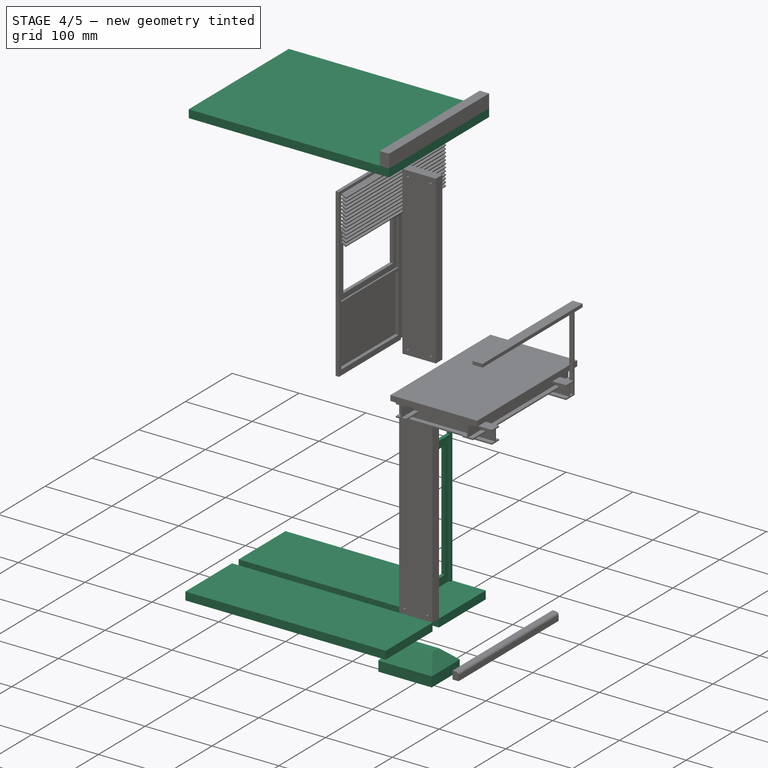
[diagram: stage 4 of 5 — iso view after this stage's code; geometry added in this stage tinted green]
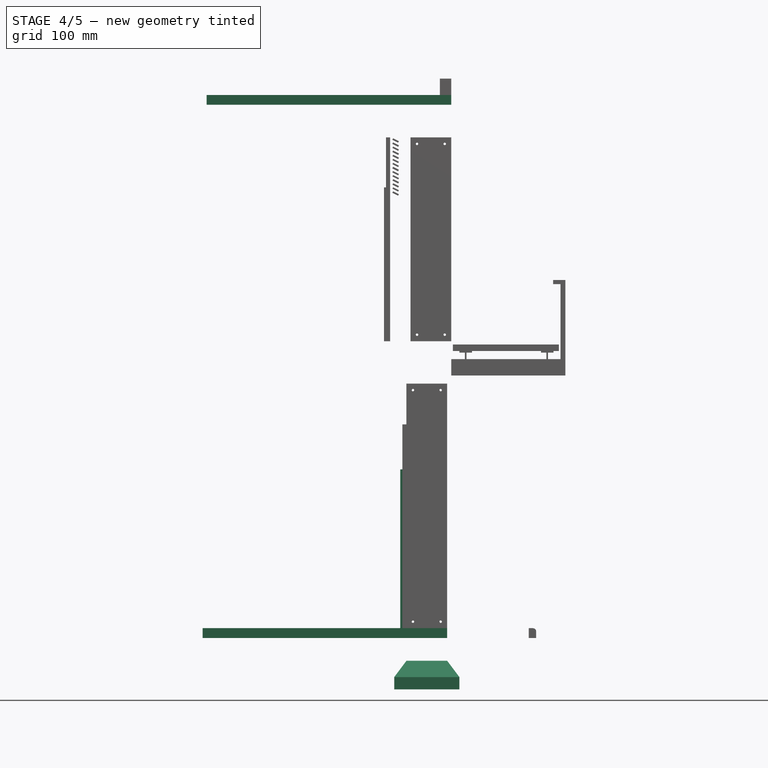
[diagram: stage 4 of 5 — front view after this stage's code; geometry added in this stage tinted green]
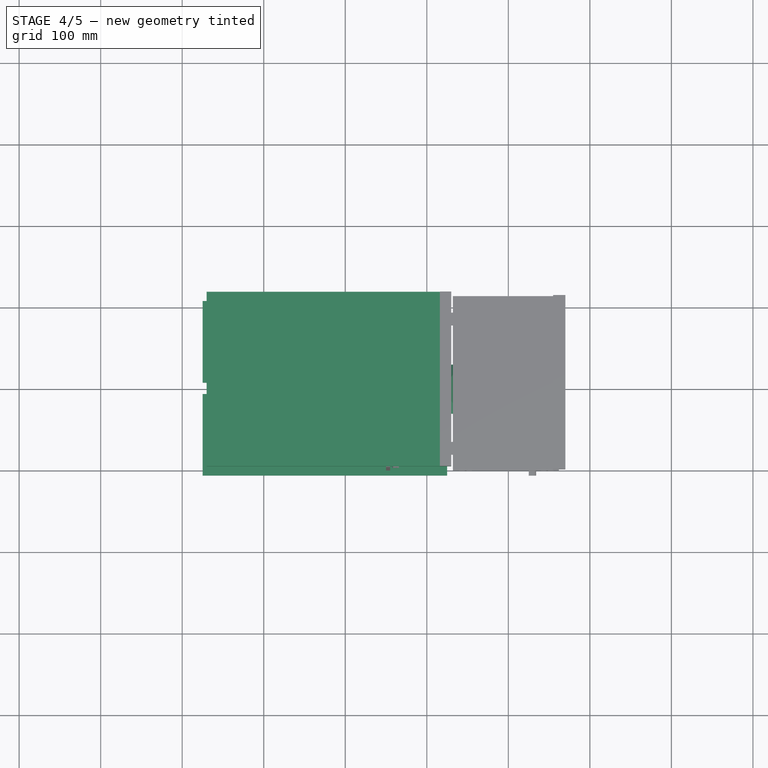
[diagram: stage 4 of 5 — top view after this stage's code; geometry added in this stage tinted green]
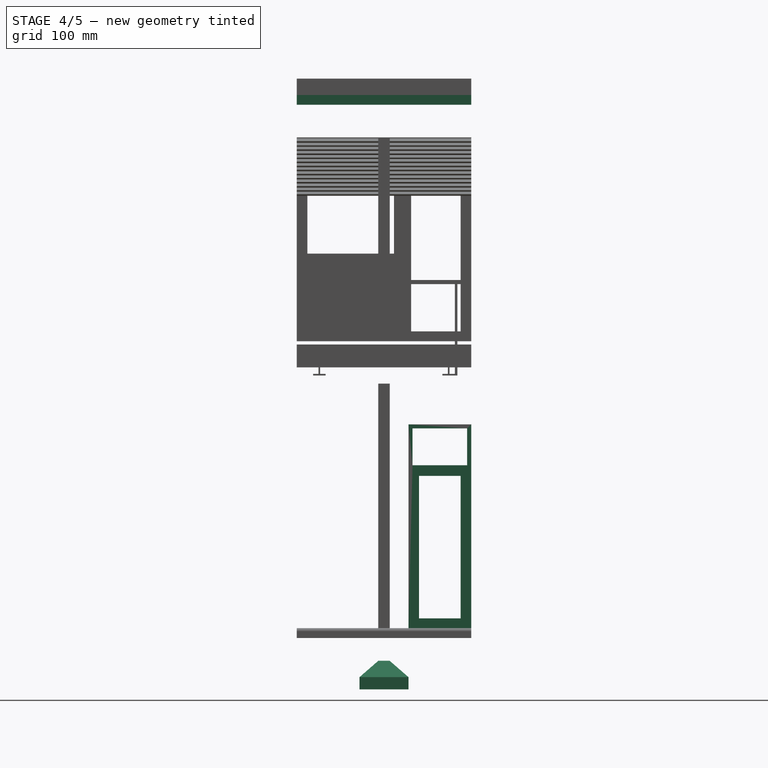
[diagram: stage 4 of 5 — right view after this stage's code; geometry added in this stage tinted green]
FEATURE [Part::Part2DObjectPython] Rectangle001  # Draft 2D object (typed FeaturePython)
  FilletRadius = 0
  Height = 60
  Length = 80
  Placement = pos=(-40,-30,-20) rot=(0,0,1;0rad)
FEATURE [Part::Feature] Solid
  shape: bbox 80 x 60 x 35 mm, 10 faces (baked)
FEATURE [Part::FeaturePython] Structure011  label="Footing"  # Arch/BIM 0 (typed FeaturePython)
  Base = -> Solid
  FaceMaker = 0
  Height = 0
  HorizontalArea = 0
  IfcData = attributes={"PredefinedType": {"name": "PredefinedType", "type": "IfcBuildingElementProxyTypeEnum", "is_enum": true, "enum_values":... (+212 chars omitted)
  IfcType = 0
  Length = 0
  MoveBase = false
  MoveWithHost = false
  NodesOffset = 0
  Normal = (0,0,0)
  PerimeterLength = 0
  Placement = pos=(0,-1.96e-13,-40) rot=(0,0,1;0rad)
  PredefinedType = 0
  VerticalArea = 0
  Width = 0
FEATURE [Part::FeaturePython] Structure012  label="Roof slab"  # Arch/BIM 0 (typed FeaturePython)
  FaceMaker = 0
  Height = 12
  HorizontalArea = 0
  IfcData = attributes={"PredefinedType": {"name": "PredefinedType", "type": "IfcBuildingElementProxyTypeEnum", "is_enum": true, "enum_values":... (+212 chars omitted)
  IfcType = 0
  Length = 214
  MoveBase = false
  MoveWithHost = false
  Nodes = (2) [(0,0,5.55112e-17),(0,0,214)]
  NodesOffset = 0
  Normal = (0,0,0)
  PerimeterLength = 0
  Placement = pos=(-120,107,648) rot=(0,0,-1;1.5708rad)
  PredefinedType = 0
  VerticalArea = 0
  Width = 300
FEATURE [Part::FeaturePython] Structure013  label="Ground floor slab 02"  # Arch/BIM 0 (typed FeaturePython)
  FaceMaker = 0
  Height = 12
  HorizontalArea = 0
  IfcData = attributes={"PredefinedType": {"name": "PredefinedType", "type": "IfcBuildingElementProxyTypeEnum", "is_enum": true, "enum_values":... (+212 chars omitted)
  IfcType = 0
  Length = 100
  MoveBase = false
  MoveWithHost = false
  Nodes = (2) [(0,0,5.55112e-17),(0,0,100)]
  NodesOffset = 0
  Normal = (0,0,0)
  PerimeterLength = 0
  Placement = pos=(-125,-7,-6) rot=(0,0,-1;1.5708rad)
  PredefinedType = 0
  VerticalArea = 0
  Width = 300
FEATURE [Part::FeaturePython] Structure014  label="Ground floor slab 01"  # Arch/BIM 0 (typed FeaturePython)
  FaceMaker = 0
  Height = 12
  HorizontalArea = 0
  IfcData = attributes={"PredefinedType": {"name": "PredefinedType", "type": "IfcBuildingElementProxyTypeEnum", "is_enum": true, "enum_values":... (+212 chars omitted)
  IfcType = 0
  Length = 100
  MoveBase = false
  MoveWithHost = false
  Nodes = (2) [(0,0,5.55112e-17),(0,0,100)]
  NodesOffset = 0
  Normal = (0,0,0)
  PerimeterLength = 0
  Placement = pos=(-125,107,-6) rot=(0,0,-1;1.5708rad)
  PredefinedType = 0
  VerticalArea = 0
  Width = 300
FEATURE [Part::FeaturePython] Wall  label="Ground floor wall"  # Arch/BIM 0 (typed FeaturePython)
  Align = 2
  Base = -> Line
  BlockHeight = 0
  BlockLength = 0
  CountBroken = 0
  CountEntire = 0
  Face = 0
  Height = 300
  HorizontalArea = 0
  IfcType = 0
  Joint = 0
  Length = 1
  MakeBlocks = false
  MoveBase = false
  MoveWithHost = false
  Normal = (0,0,0)
  OffsetFirst = 0
  OffsetSecond = 0
  PerimeterLength = 0
  Placement = pos=(243,0,0) rot=(0,0,1;0rad)
  Subtractions = -> [Extrusion,Extrusion001]
  VerticalArea = 0
  Width = 14
FEATURE [Sketcher::SketchObject] Sketch002
  ExternalGeometry = -> [Wall]
  MapMode = 5
  Placement = pos=(243,0,1.8e-15) rot=(1,0,0;3.14159rad)
  Support = -> [Wall]
  sketch-geometry (16):
    g0: LineSegment StartX=-107 StartY=250 StartZ=0 EndX=-30 EndY=250 EndZ=0
    g1: LineSegment StartX=-30 StartY=250 StartZ=0 EndX=-30 EndY=0 EndZ=0
    g2: LineSegment StartX=-30 StartY=0 StartZ=0 EndX=-107 EndY=0 EndZ=0
    g3: LineSegment StartX=-107 StartY=0 StartZ=0 EndX=-107 EndY=250 EndZ=0
    g4: LineSegment StartX=-102 StartY=245 StartZ=0 EndX=-35 EndY=245 EndZ=0
    g5: LineSegment StartX=-35 StartY=245 StartZ=0 EndX=-35 EndY=199.818 EndZ=0
    g6: LineSegment StartX=-35 StartY=199.818 StartZ=0 EndX=-102 EndY=199.818 EndZ=0
    g7: LineSegment StartX=-102 StartY=199.818 StartZ=0 EndX=-102 EndY=245 EndZ=0
    g8: LineSegment StartX=-102 StartY=194.818 StartZ=0 EndX=-35 EndY=194.818 EndZ=0
    g9: LineSegment StartX=-35 StartY=194.818 StartZ=0 EndX=-35 EndY=0 EndZ=0
    g10: LineSegment StartX=-35 StartY=0 StartZ=0 EndX=-102 EndY=0 EndZ=0
    g11: LineSegment StartX=-102 StartY=0 StartZ=0 EndX=-102 EndY=194.818 EndZ=0
    g12: LineSegment StartX=-94 StartY=186.818 StartZ=0 EndX=-43 EndY=186.818 EndZ=0
    g13: LineSegment StartX=-43 StartY=186.818 StartZ=0 EndX=-43 EndY=12 EndZ=0
    g14: LineSegment StartX=-43 StartY=12 StartZ=0 EndX=-94 EndY=12 EndZ=0
    g15: LineSegment StartX=-94 StartY=12 StartZ=0 EndX=-94 EndY=186.818 EndZ=0
  constraints (47):
    c: Coincident(g0,g1)
    c: Coincident(g1,g2)
    c: Coincident(g2,g3)
    c: Coincident(g3,g0)
    c: Horizontal(g0)
    c: Horizontal(g2)
    c: Vertical(g1)
    c: Vertical(g3)
    c: DistanceX(g0,g-4) = 0
    c: DistanceX(g0,g-3) = 0
    c: DistanceY(g1,g-4) = 0
    c: DistanceY(g0,g-4) = 0
    c: Coincident(g4,g5)
    c: Coincident(g5,g6)
    c: Coincident(g6,g7)
    c: Coincident(g7,g4)
    c: Horizontal(g4)
    c: Horizontal(g6)
    c: Vertical(g5)
    c: Vertical(g7)
    c: Coincident(g8,g9)
    c: Coincident(g9,g10)
    c: Coincident(g10,g11)
    c: Coincident(g11,g8)
    c: Horizontal(g8)
    c: Horizontal(g10)
    c: Vertical(g9)
    c: Vertical(g11)
    c: PointOnObject(g9,g2)
    c: Coincident(g12,g13)
    c: Coincident(g13,g14)
    c: Coincident(g14,g15)
    c: Coincident(g15,g12)
    c: Horizontal(g12)
    c: Horizontal(g14)
    c: Vertical(g13)
    c: Vertical(g15)
    c: DistanceX(g4,g0) = -5
    c: DistanceY(g4,g0) = 5
    c: DistanceX(g4,g0) = 5
    c: DistanceX(g8,g6) = 0
    c: DistanceY(g8,g6) = 5
    c: DistanceX(g8,g5) = 0
    c: DistanceY(g12,g8) = 8
    c: DistanceX(g12,g8) = -8
    c: DistanceX(g12,g8) = 8
    c: DistanceY(g14,g10) = -12
FEATURE [Part::FeaturePython] Window  label="Ground floor window 01"  # Arch/BIM 0 (typed FeaturePython)
  Area = 0
  Base = -> Sketch002
  Frame = 0
  Height = 0
  HoleDepth = 0
  HoleWire = 0
  HorizontalArea = 0
  IfcType = 0
  LouvreSpacing = 0
  LouvreWidth = 0
  MoveBase = false
  MoveWithHost = false
  Normal = (0,0,0)
  Opening = 0
  PerimeterLength = 0
  Placement = pos=(-25,-243,0) rot=(0.57735,0.57735,-0.57735;4.18879rad)
  Preset = 0
  SymbolElevation = false
  SymbolPlan = false
  VerticalArea = 0
  Width = 0
  WindowParts = Outer Frame | Panel | Wire0,Wire1,Wire2,Wire3 | -5 | 0 | Inner Frame | Wire3,Wire2 | -5 | -2.5
FEATURE [Part::FeaturePython] Clone  label="Ground floor window 02"  # Draft clone (typed FeaturePython)
  Objects = -> [Window]
  Placement = pos=(-25,-106,7e-15) rot=(0.57735,0.57735,-0.57735;4.18879rad)
  Scale = (1,1,1)
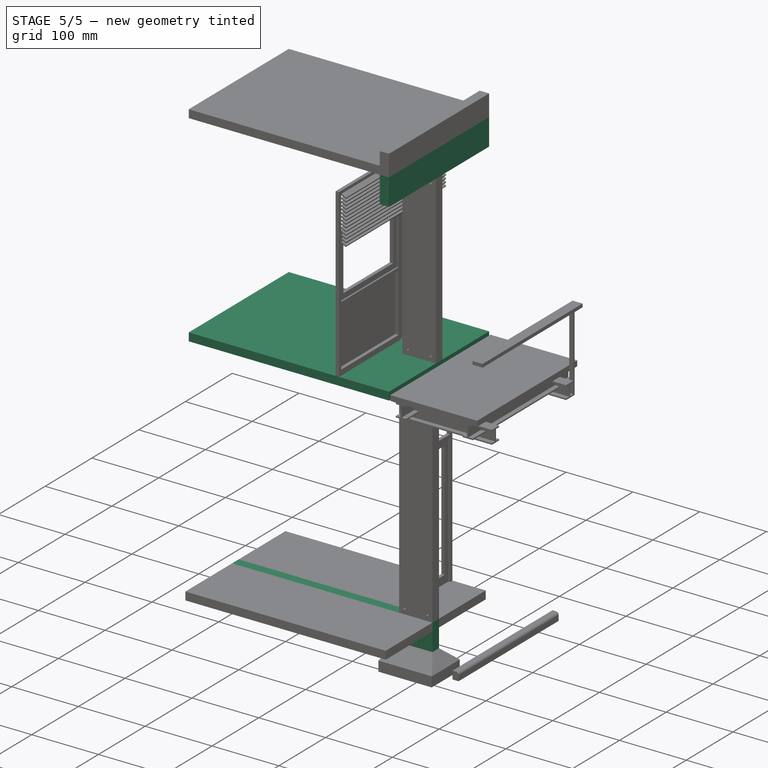
[diagram: stage 5 of 5 — iso view after this stage's code; geometry added in this stage tinted green]
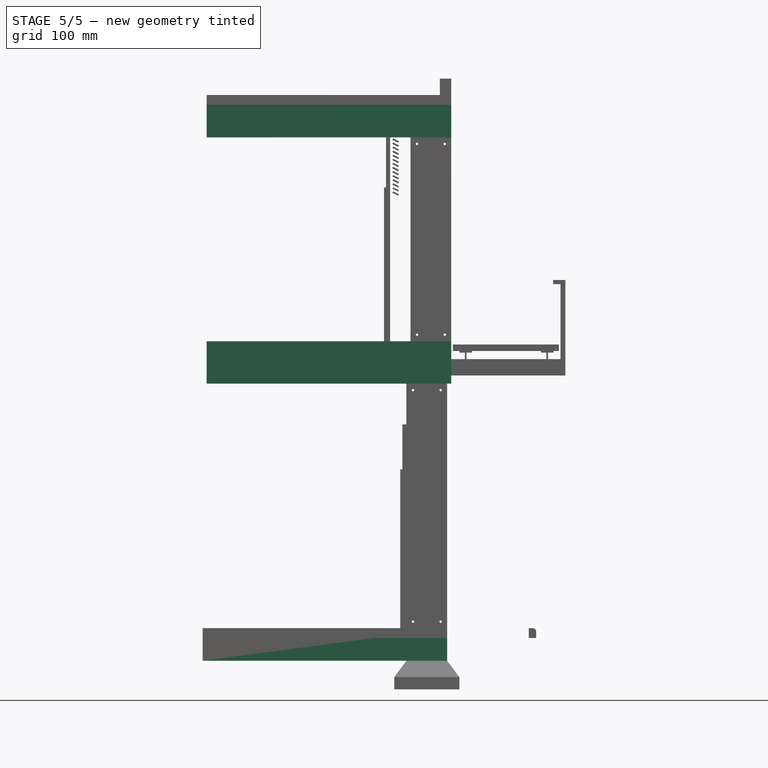
[diagram: stage 5 of 5 — front view after this stage's code; geometry added in this stage tinted green]
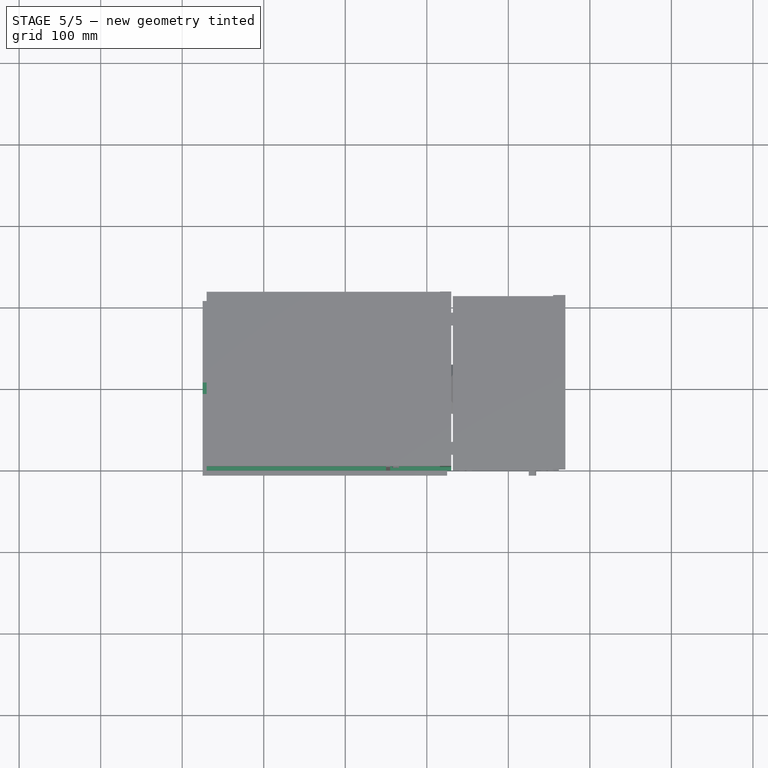
[diagram: stage 5 of 5 — top view after this stage's code; geometry added in this stage tinted green]
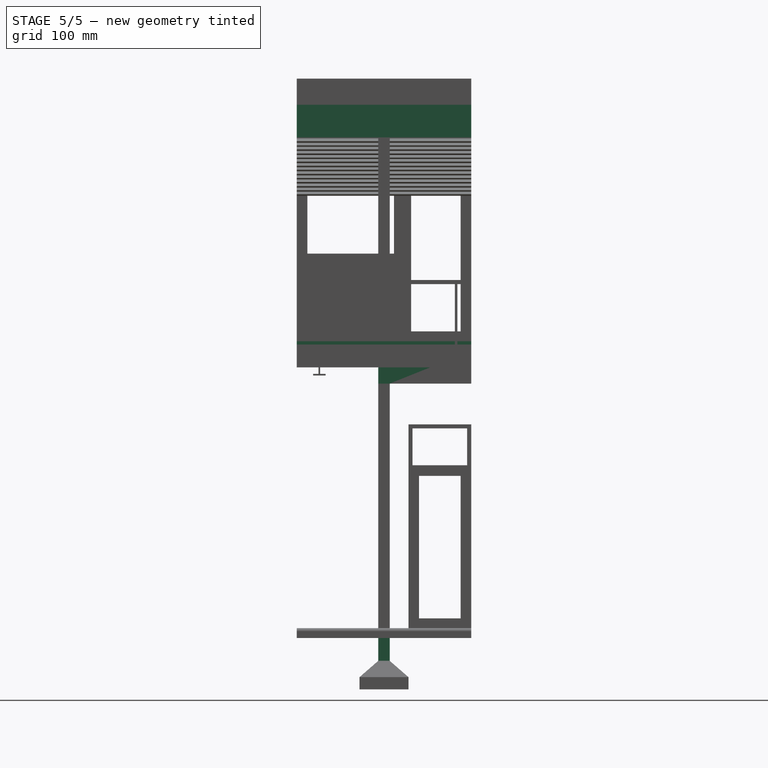
[diagram: stage 5 of 5 — right view after this stage's code; geometry added in this stage tinted green]
FEATURE [Part::FeaturePython] Structure001  label="Upper floor main beam"  # Arch/BIM 0 (typed FeaturePython)
  FaceMaker = 0
  Height = 40
  HorizontalArea = 0
  IfcData = attributes={"PredefinedType": {"name": "PredefinedType", "type": "IfcBuildingElementProxyTypeEnum", "is_enum": true, "enum_values":... (+212 chars omitted)
  IfcType = 0
  Length = 300
  MoveBase = false
  MoveWithHost = false
  Nodes = (2) [(0,1.77636e-16,9.4369e-16),(0,1.77636e-16,300)]
  NodesOffset = 0
  Normal = (0,0,0)
  PerimeterLength = 0
  Placement = pos=(-270,0,320) rot=(0,0,1;0rad)
  PredefinedType = 0
  VerticalArea = 0
  Width = 14
FEATURE [Part::FeaturePython] Structure003  label="Upper floor front beam 01"  # Arch/BIM 0 (typed FeaturePython)
  FaceMaker = 0
  Height = 40
  HorizontalArea = 0
  IfcData = attributes={"PredefinedType": {"name": "PredefinedType", "type": "IfcBuildingElementProxyTypeEnum", "is_enum": true, "enum_values":... (+212 chars omitted)
  IfcType = 0
  Length = 100
  MoveBase = false
  MoveWithHost = false
  Nodes = (2) [(0,1.77636e-16,9.4369e-16),(0,1.77636e-16,100)]
  NodesOffset = 0
  Normal = (0,0,0)
  PerimeterLength = 0
  Placement = pos=(23,107,320) rot=(0,0,-1;1.5708rad)
  PredefinedType = 0
  VerticalArea = 0
  Width = 14
FEATURE [Part::FeaturePython] Structure005  label="Upper floor slab"  # Arch/BIM 0 (typed FeaturePython)
  FaceMaker = 0
  Height = 12
  HorizontalArea = 0
  IfcData = attributes={"PredefinedType": {"name": "PredefinedType", "type": "IfcBuildingElementProxyTypeEnum", "is_enum": true, "enum_values":... (+212 chars omitted)
  IfcType = 0
  Length = 214
  MoveBase = false
  MoveWithHost = false
  Nodes = (2) [(0,0,5.55112e-17),(0,0,214)]
  NodesOffset = 0
  Normal = (0,0,0)
  PerimeterLength = 0
  Placement = pos=(-120,107,346) rot=(0,0,-1;1.5708rad)
  PredefinedType = 0
  VerticalArea = 0
  Width = 300
FEATURE [Part::FeaturePython] Structure006  label="Roof main beam"  # Arch/BIM 0 (typed FeaturePython)
  FaceMaker = 0
  Height = 40
  HorizontalArea = 0
  IfcData = attributes={"PredefinedType": {"name": "PredefinedType", "type": "IfcBuildingElementProxyTypeEnum", "is_enum": true, "enum_values":... (+212 chars omitted)
  IfcType = 0
  Length = 300
  MoveBase = false
  MoveWithHost = false
  Nodes = (2) [(0,1.77636e-16,9.4369e-16),(0,1.77636e-16,300)]
  NodesOffset = 0
  Normal = (0,0,0)
  PerimeterLength = 0
  Placement = pos=(-270,2e-15,622) rot=(0,0,1;0rad)
  PredefinedType = 0
  VerticalArea = 0
  Width = 14
FEATURE [Part::FeaturePython] Structure007  label="Roof front beam 02"  # Arch/BIM 0 (typed FeaturePython)
  FaceMaker = 0
  Height = 40
  HorizontalArea = 0
  IfcData = attributes={"PredefinedType": {"name": "PredefinedType", "type": "IfcBuildingElementProxyTypeEnum", "is_enum": true, "enum_values":... (+212 chars omitted)
  IfcType = 0
  Length = 100
  MoveBase = false
  MoveWithHost = false
  Nodes = (2) [(0,1.77636e-16,9.4369e-16),(0,1.77636e-16,100)]
  NodesOffset = 0
  Normal = (0,0,0)
  PerimeterLength = 0
  Placement = pos=(23,-7,622) rot=(0,0,-1;1.5708rad)
  PredefinedType = 0
  VerticalArea = 0
  Width = 14
FEATURE [Part::FeaturePython] Structure008  label="Roof front beam 01"  # Arch/BIM 0 (typed FeaturePython)
  FaceMaker = 0
  Height = 40
  HorizontalArea = 0
  IfcData = attributes={"PredefinedType": {"name": "PredefinedType", "type": "IfcBuildingElementProxyTypeEnum", "is_enum": true, "enum_values":... (+212 chars omitted)
  IfcType = 0
  Length = 100
  MoveBase = false
  MoveWithHost = false
  Nodes = (2) [(0,1.77636e-16,9.4369e-16),(0,1.77636e-16,100)]
  NodesOffset = 0
  Normal = (0,0,0)
  PerimeterLength = 0
  Placement = pos=(23,107,622) rot=(0,0,-1;1.5708rad)
  PredefinedType = 0
  VerticalArea = 0
  Width = 14
FEATURE [Part::FeaturePython] Structure010  label="Ground floor main beam"  # Arch/BIM 0 (typed FeaturePython)
  FaceMaker = 0
  Height = 40
  HorizontalArea = 0
  IfcData = attributes={"PredefinedType": {"name": "PredefinedType", "type": "IfcBuildingElementProxyTypeEnum", "is_enum": true, "enum_values":... (+212 chars omitted)
  IfcType = 0
  Length = 300
  MoveBase = false
  MoveWithHost = false
  Nodes = (2) [(0,1.77636e-16,9.4369e-16),(0,1.77636e-16,300)]
  NodesOffset = 0
  Normal = (0,0,0)
  PerimeterLength = 0
  Placement = pos=(25,-2.03e-13,-20) rot=(0,0,1;0rad)
  PredefinedType = 0
  VerticalArea = 0
  Width = 14
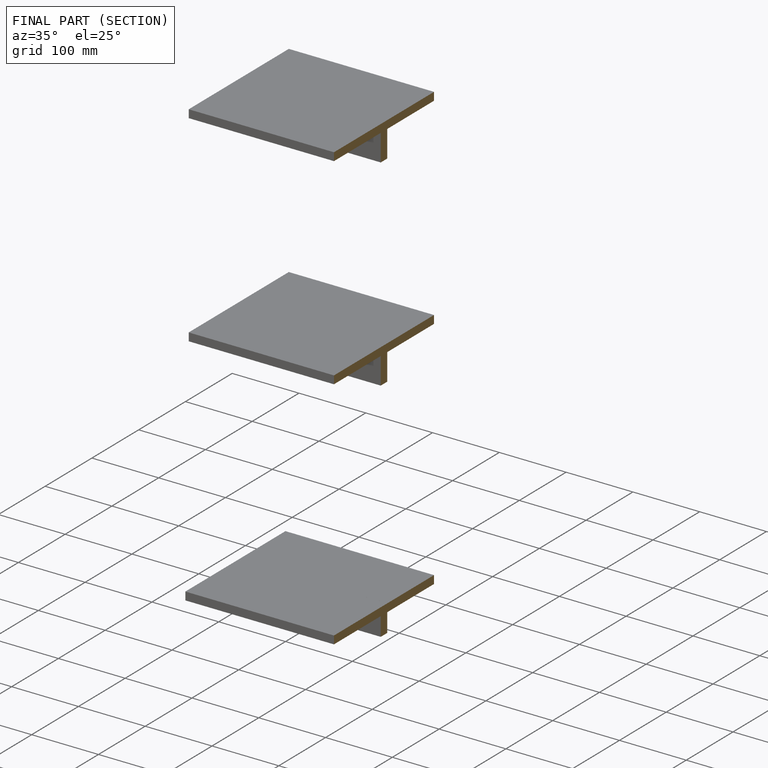
[diagram: finished part — half-section view (interior)]
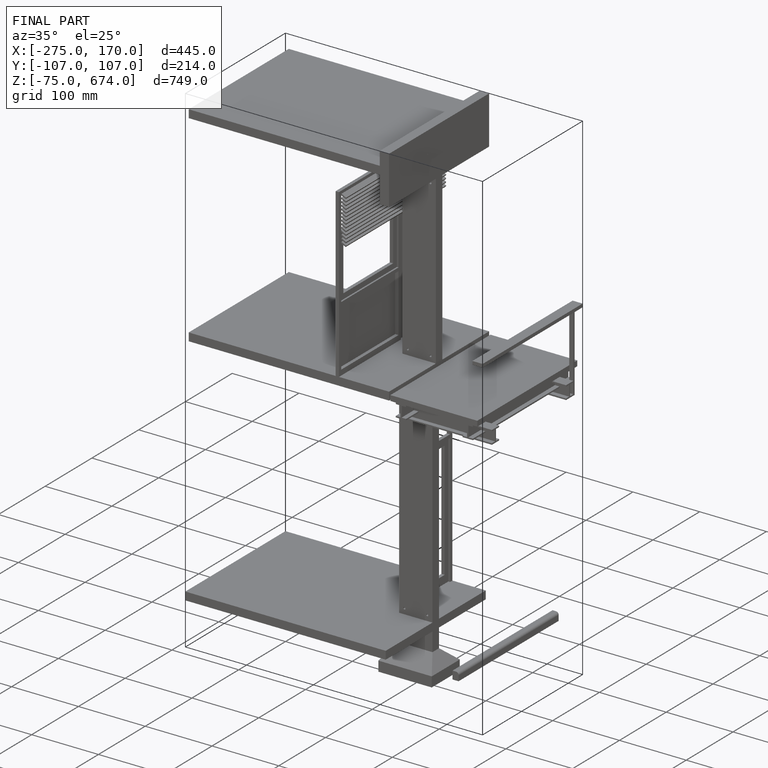
[diagram: finished part — iso view with bounding-box wireframe]
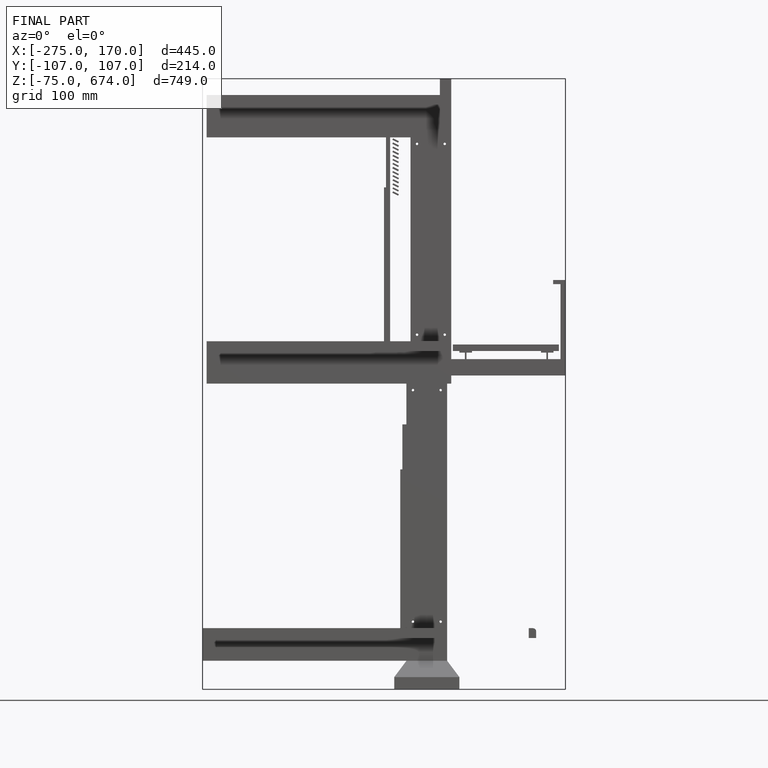
[diagram: finished part — front view with bounding-box wireframe]
